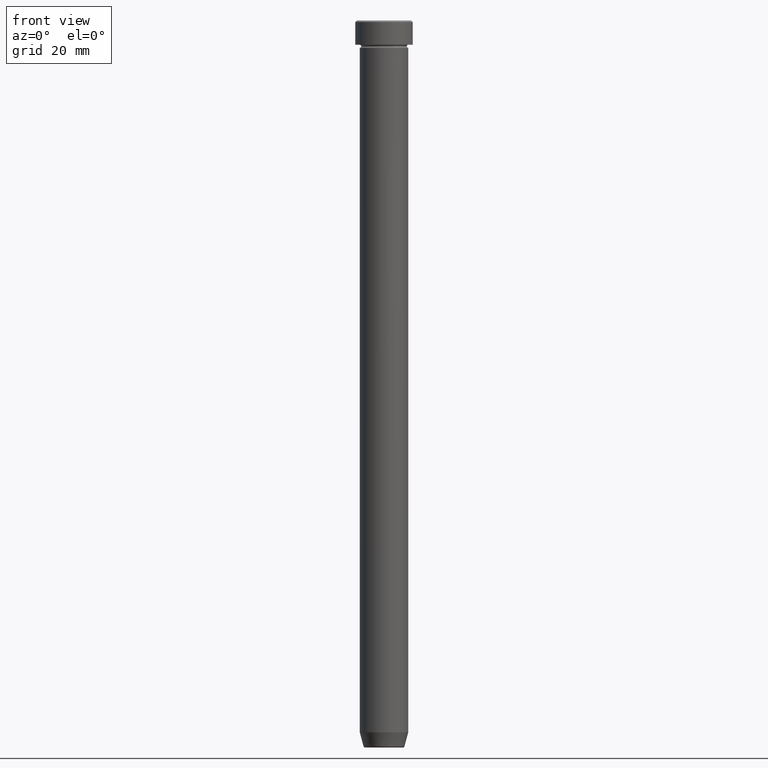
[diagram: clean part render]
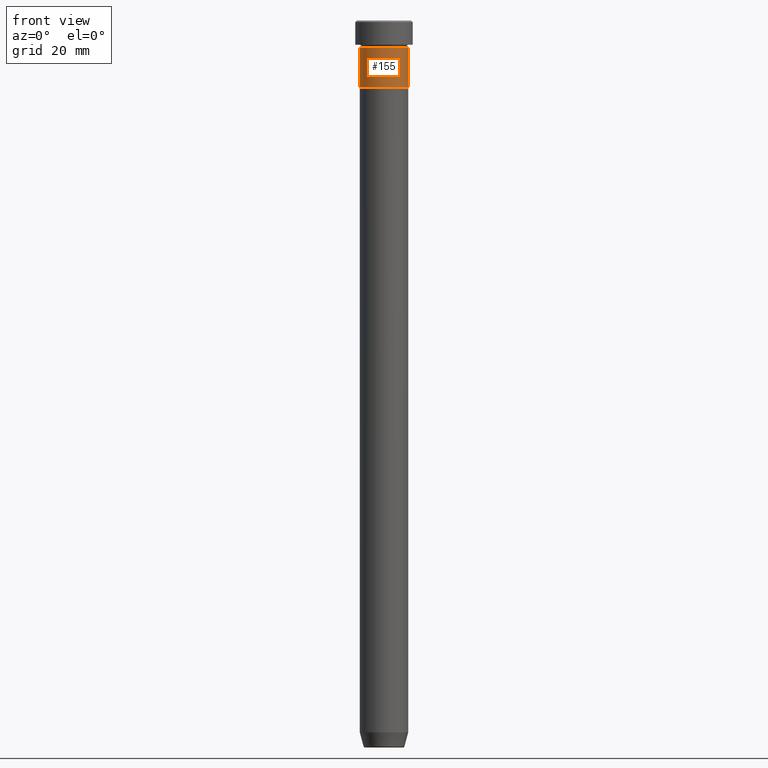
[diagram: same view with one face highlighted and labeled with its STEP entity id]
A machine part, front view. The second image highlights one B-rep face of the part: STEP entity #155.
In plain terms, the highlighted cylindrical surface (edge-blend (fillet) strip) has radius 8 mm, axis along (-0, -0, 1).
Its self-contained STEP definition (entity closure, byte-faithful):
#38 = FACE_OUTER_BOUND ( 'NONE', #180, .T. ) ;
#72 = CARTESIAN_POINT ( 'NONE',  ( 8.000000000000000000, 0.000000000000000000, -22.00000000000000000 ) ) ;
#78 = DIRECTION ( 'NONE',  ( 1.000000000000000000, 0.000000000000000000, 0.000000000000000000 ) ) ;
#97 = ORIENTED_EDGE ( 'NONE', *, *, #319, .F. ) ;
#124 = VECTOR ( 'NONE', #332, 1000.000000000000000 ) ;
#127 = VERTEX_POINT ( 'NONE', #72 ) ;
#134 = CIRCLE ( 'NONE', #159, 8.000000000000000000 ) ;
#141 = CIRCLE ( 'NONE', #472, 8.000000000000000000 ) ;
#155 = ADVANCED_FACE ( 'NONE', ( #38 ), #397, .T. ) ;
#159 = AXIS2_PLACEMENT_3D ( 'NONE', #305, #296, #78 ) ;
#175 = CARTESIAN_POINT ( 'NONE',  ( 0.000000000000000000, 0.000000000000000000, 0.000000000000000000 ) ) ;
#180 = EDGE_LOOP ( 'NONE', ( #97, #579, #287, #306 ) ) ;
#193 = EDGE_CURVE ( 'NONE', #127, #362, #196, .T. ) ;
#196 = LINE ( 'NONE', #468, #124 ) ;
#247 = EDGE_CURVE ( 'NONE', #495, #127, #141, .T. ) ;
#251 = LINE ( 'NONE', #259, #266 ) ;
#259 = CARTESIAN_POINT ( 'NONE',  ( -8.000000000000000000, 9.797174393178825657E-16, 0.000000000000000000 ) ) ;
#266 = VECTOR ( 'NONE', #382, 1000.000000000000000 ) ;
#278 = CARTESIAN_POINT ( 'NONE',  ( -8.000000000000000000, 9.797174393178825657E-16, -9.000000000000001776 ) ) ;
#279 = EDGE_CURVE ( 'NONE', #485, #362, #134, .T. ) ;
#286 = CARTESIAN_POINT ( 'NONE',  ( -8.000000000000000000, 9.797174393178825657E-16, -22.00000000000000000 ) ) ;
#287 = ORIENTED_EDGE ( 'NONE', *, *, #193, .T. ) ;
#290 = CARTESIAN_POINT ( 'NONE',  ( 8.000000000000000000, 0.000000000000000000, -9.000000000000001776 ) ) ;
#296 = DIRECTION ( 'NONE',  ( -0.000000000000000000, -0.000000000000000000, 1.000000000000000000 ) ) ;
#303 = DIRECTION ( 'NONE',  ( 1.000000000000000000, 0.000000000000000000, 0.000000000000000000 ) ) ;
#305 = CARTESIAN_POINT ( 'NONE',  ( 0.000000000000000000, 0.000000000000000000, -9.000000000000001776 ) ) ;
#306 = ORIENTED_EDGE ( 'NONE', *, *, #279, .F. ) ;
#319 = EDGE_CURVE ( 'NONE', #495, #485, #251, .T. ) ;
#332 = DIRECTION ( 'NONE',  ( -0.000000000000000000, -0.000000000000000000, 1.000000000000000000 ) ) ;
#345 = CARTESIAN_POINT ( 'NONE',  ( 0.000000000000000000, 0.000000000000000000, -22.00000000000000000 ) ) ;
#350 = DIRECTION ( 'NONE',  ( -0.000000000000000000, -0.000000000000000000, 1.000000000000000000 ) ) ;
#353 = DIRECTION ( 'NONE',  ( 1.000000000000000000, 0.000000000000000000, 0.000000000000000000 ) ) ;
#362 = VERTEX_POINT ( 'NONE', #290 ) ;
#377 = AXIS2_PLACEMENT_3D ( 'NONE', #175, #350, #303 ) ;
#382 = DIRECTION ( 'NONE',  ( -0.000000000000000000, -0.000000000000000000, 1.000000000000000000 ) ) ;
#393 = DIRECTION ( 'NONE',  ( -0.000000000000000000, -0.000000000000000000, 1.000000000000000000 ) ) ;
#397 = CYLINDRICAL_SURFACE ( 'NONE', #377, 8.000000000000000000 ) ;
#468 = CARTESIAN_POINT ( 'NONE',  ( 8.000000000000000000, 0.000000000000000000, 0.000000000000000000 ) ) ;
#472 = AXIS2_PLACEMENT_3D ( 'NONE', #345, #393, #353 ) ;
#485 = VERTEX_POINT ( 'NONE', #278 ) ;
#495 = VERTEX_POINT ( 'NONE', #286 ) ;
#579 = ORIENTED_EDGE ( 'NONE', *, *, #247, .T. ) ;